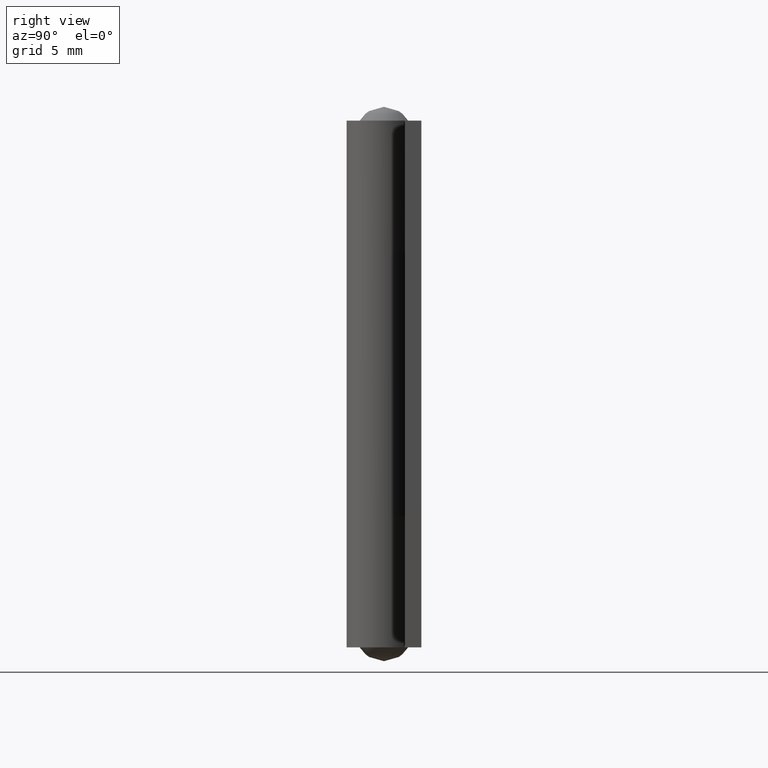
[diagram: clean part render]
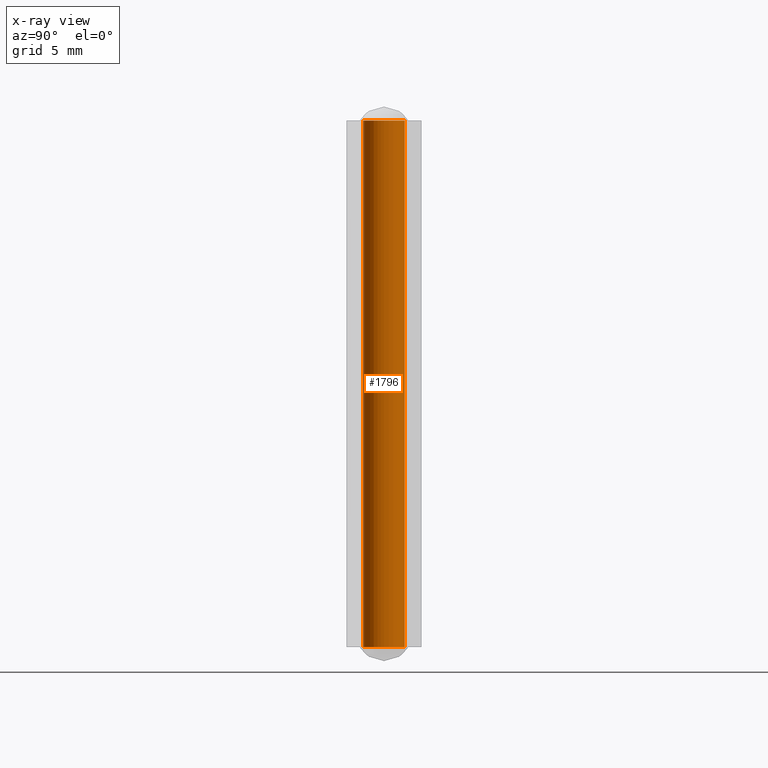
[diagram: x-ray — body ghosted, one internal face saturated and labeled with its STEP entity id]
A machine part, right view, then the same camera in x-ray: the body is ghosted and one INTERNAL B-rep face — a face not visible from any outside direction — is saturated and labeled: STEP entity #1796.
In plain terms, the highlighted face is a freeform B-spline surface patch.
Its self-contained STEP definition (entity closure, byte-faithful):
#1610=CARTESIAN_POINT('',(0.091572504114544,-1.497197206955531,5.551115E-016));
#1611=VERTEX_POINT('',#1610);
#1625=CARTESIAN_POINT('',(-1.499995000000084,0.0,0.0));
#1626=VERTEX_POINT('',#1625);
#1627=CARTESIAN_POINT('',(0.091572504114544,-1.497197206955532,0.0));
#1628=CARTESIAN_POINT('',(0.045828992211622,-1.499995000000084,0.0));
#1629=CARTESIAN_POINT('',(0.0,-1.499995000000084,0.0));
#1630=CARTESIAN_POINT('',(-1.499995000000085,-1.499995000000085,0.0));
#1631=CARTESIAN_POINT('',(-1.499995000000084,0.0,0.0));
#1639=(BOUNDED_CURVE()B_SPLINE_CURVE(2,(#1627,#1628,#1629,#1630,#1631),.UNSPECIFIED.,.F.,.U.)B_SPLINE_CURVE_WITH_KNOTS((3,2,3),(0.739332962235635,0.750000000000000,1.0),.UNSPECIFIED.)CURVE()GEOMETRIC_REPRESENTATION_ITEM()RATIONAL_B_SPLINE_CURVE((0.976072041659629,0.987502787895962,1.0,0.707106781186547,1.0))REPRESENTATION_ITEM(''));
#1640=EDGE_CURVE('',#1611,#1626,#1639,.T.);
#1642=CARTESIAN_POINT('',(-0.091572504114545,1.497197206955531,5.551115E-016));
#1643=VERTEX_POINT('',#1642);
#1644=CARTESIAN_POINT('',(-1.499995000000084,0.0,0.0));
#1645=CARTESIAN_POINT('',(-1.499995000000084,1.411054396776400,0.0));
#1646=CARTESIAN_POINT('',(-0.091572504114545,1.497197206955531,0.0));
#1654=(BOUNDED_CURVE()B_SPLINE_CURVE(2,(#1644,#1645,#1646),.UNSPECIFIED.,.F.,.U.)B_SPLINE_CURVE_WITH_KNOTS((3,3),(0.0,0.239332962235635),.UNSPECIFIED.)CURVE()GEOMETRIC_REPRESENTATION_ITEM()RATIONAL_B_SPLINE_CURVE((1.0,0.719603993290585,0.976072041659629))REPRESENTATION_ITEM(''));
#1655=EDGE_CURVE('',#1626,#1643,#1654,.T.);
#1694=CARTESIAN_POINT('',(-0.091572504114545,1.497197206955531,38.0));
#1695=VERTEX_POINT('',#1694);
#1696=CARTESIAN_POINT('',(-0.091572504114545,1.497197206955531,38.0));
#1697=CARTESIAN_POINT('',(-0.091572504114545,1.497197206955531,5.551115E-016));
#1698=QUASI_UNIFORM_CURVE('',1,(#1696,#1697),.UNSPECIFIED.,.F.,.U.);
#1699=EDGE_CURVE('',#1695,#1643,#1698,.T.);
#1718=CARTESIAN_POINT('',(0.091572504114544,-1.497197206955531,38.0));
#1719=VERTEX_POINT('',#1718);
#1733=CARTESIAN_POINT('',(0.091572504114544,-1.497197206955531,38.0));
#1734=CARTESIAN_POINT('',(0.091572504114544,-1.497197206955531,5.551115E-016));
#1735=QUASI_UNIFORM_CURVE('',1,(#1733,#1734),.UNSPECIFIED.,.F.,.U.);
#1736=EDGE_CURVE('',#1719,#1611,#1735,.T.);
#1742=CARTESIAN_POINT('',(0.091572504059593,-1.497197206958892,38.950000000000010));
#1743=CARTESIAN_POINT('',(-1.405624702899299,-1.588769711018485,38.950000000000003));
#1744=CARTESIAN_POINT('',(-1.497197206958892,-0.091572504059593,38.950000000000010));
#1745=CARTESIAN_POINT('',(-1.588769711018485,1.405624702899299,38.950000000000003));
#1746=CARTESIAN_POINT('',(-0.091572504059593,1.497197206958892,38.950000000000010));
#1747=CARTESIAN_POINT('',(0.091572504059593,-1.497197206958892,-0.973749999999995));
#1748=CARTESIAN_POINT('',(-1.405624702899299,-1.588769711018485,-0.973749999999995));
#1749=CARTESIAN_POINT('',(-1.497197206958892,-0.091572504059593,-0.973749999999995));
#1750=CARTESIAN_POINT('',(-1.588769711018485,1.405624702899299,-0.973749999999995));
#1751=CARTESIAN_POINT('',(-0.091572504059593,1.497197206958892,-0.973749999999995));
#1759=(BOUNDED_SURFACE()B_SPLINE_SURFACE(2,1,((#1742,#1747),(#1743,#1748),(#1744,#1749),(#1745,#1750),(#1746,#1751)),.UNSPECIFIED.,.F.,.F.,.U.)B_SPLINE_SURFACE_WITH_KNOTS((3,2,3),(2,2),(0.0,1.570796326794897,3.141592653589793),(0.0,39.923750000000013),.UNSPECIFIED.)GEOMETRIC_REPRESENTATION_ITEM()RATIONAL_B_SPLINE_SURFACE(((1.0,1.0),(0.707106781186548,0.707106781186548),(1.0,1.0),(0.707106781186548,0.707106781186548),(1.0,1.0)))REPRESENTATION_ITEM('')SURFACE());
#1760=ORIENTED_EDGE('',*,*,#1655,.F.);
#1761=ORIENTED_EDGE('',*,*,#1640,.F.);
#1762=ORIENTED_EDGE('',*,*,#1736,.F.);
#1763=CARTESIAN_POINT('',(-1.499995000000084,0.0,38.0));
#1764=VERTEX_POINT('',#1763);
#1765=CARTESIAN_POINT('',(0.091572504114544,-1.497197206955532,37.999999999999993));
#1766=CARTESIAN_POINT('',(0.045828992211622,-1.499995000000084,38.0));
#1767=CARTESIAN_POINT('',(0.0,-1.499995000000084,38.0));
#1768=CARTESIAN_POINT('',(-1.499995000000085,-1.499995000000085,37.999999999999993));
#1769=CARTESIAN_POINT('',(-1.499995000000084,0.0,38.0));
#1777=(BOUNDED_CURVE()B_SPLINE_CURVE(2,(#1765,#1766,#1767,#1768,#1769),.UNSPECIFIED.,.F.,.U.)B_SPLINE_CURVE_WITH_KNOTS((3,2,3),(0.739332962235635,0.750000000000000,1.0),.UNSPECIFIED.)CURVE()GEOMETRIC_REPRESENTATION_ITEM()RATIONAL_B_SPLINE_CURVE((0.976072041659629,0.987502787895962,1.0,0.707106781186547,1.0))REPRESENTATION_ITEM(''));
#1778=EDGE_CURVE('',#1719,#1764,#1777,.T.);
#1779=ORIENTED_EDGE('',*,*,#1778,.T.);
#1780=CARTESIAN_POINT('',(-1.499995000000084,0.0,38.0));
#1781=CARTESIAN_POINT('',(-1.499995000000084,1.411054396776400,38.000000000000007));
#1782=CARTESIAN_POINT('',(-0.091572504114545,1.497197206955531,38.000000000000007));
#1790=(BOUNDED_CURVE()B_SPLINE_CURVE(2,(#1780,#1781,#1782),.UNSPECIFIED.,.F.,.U.)B_SPLINE_CURVE_WITH_KNOTS((3,3),(0.0,0.239332962235635),.UNSPECIFIED.)CURVE()GEOMETRIC_REPRESENTATION_ITEM()RATIONAL_B_SPLINE_CURVE((1.0,0.719603993290585,0.976072041659629))REPRESENTATION_ITEM(''));
#1791=EDGE_CURVE('',#1764,#1695,#1790,.T.);
#1792=ORIENTED_EDGE('',*,*,#1791,.T.);
#1793=ORIENTED_EDGE('',*,*,#1699,.T.);
#1794=EDGE_LOOP('',(#1760,#1761,#1762,#1779,#1792,#1793));
#1795=FACE_OUTER_BOUND('',#1794,.T.);
#1796=ADVANCED_FACE('',(#1795),#1759,.T.);